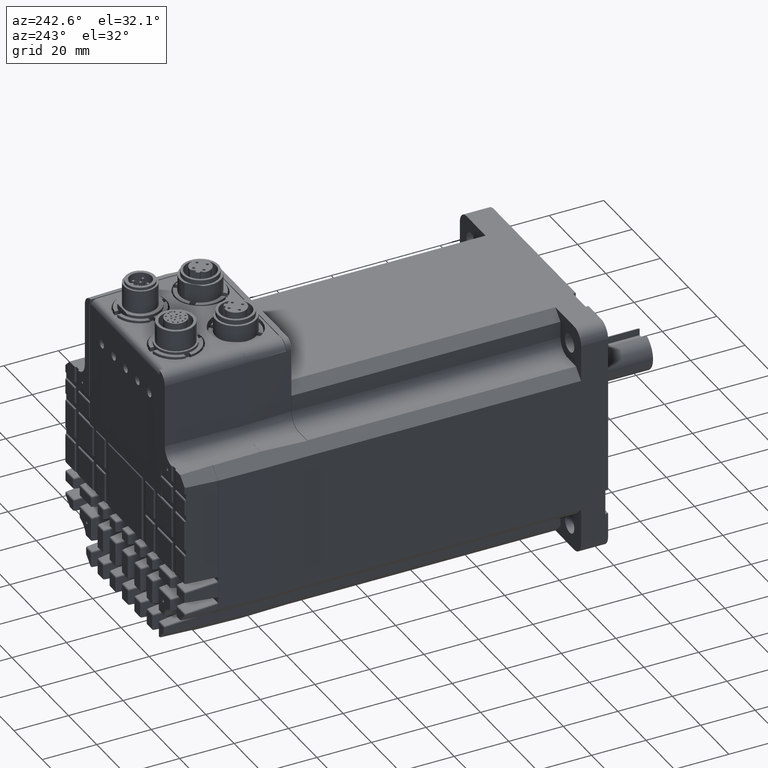
[diagram: clean part render]
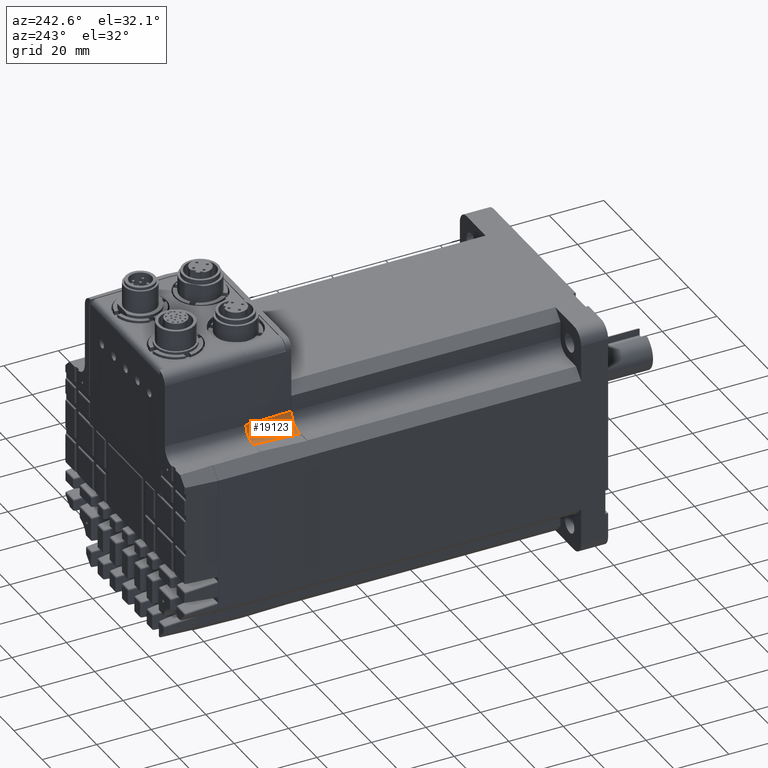
[diagram: same view with one face highlighted and labeled with its STEP entity id]
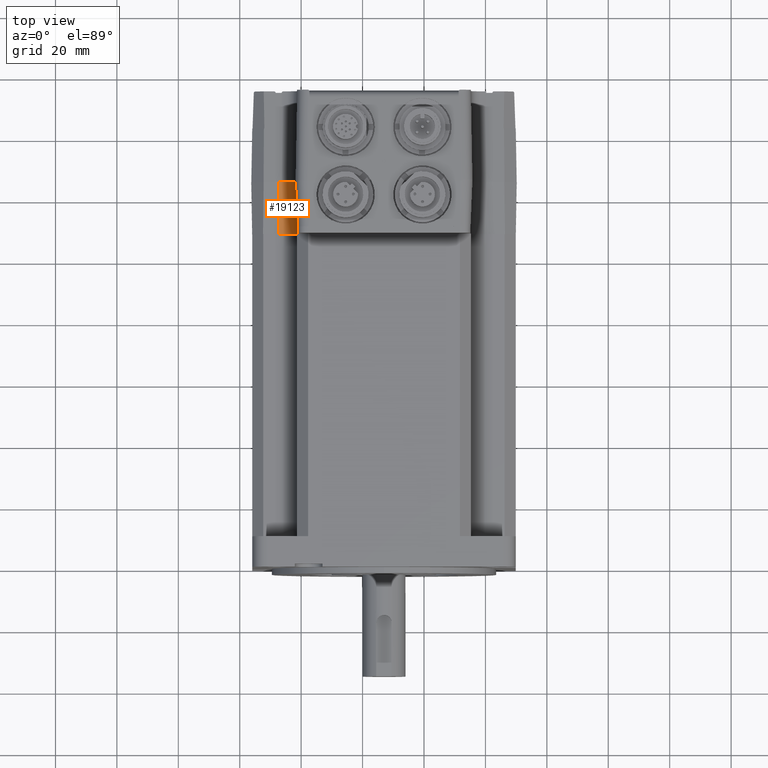
[diagram: same view with one face highlighted and labeled with its STEP entity id]
A machine part, auxiliary view. The second image highlights one B-rep face of the part: STEP entity #19123.
A second angle (top view) of the same face is appended — the face is thin or edge-on in the first view.
In plain terms, the highlighted conical surface has half-angle 2.2 deg.
Its self-contained STEP definition (entity closure, byte-faithful):
#179=CONICAL_SURFACE('',#20975,5.2,0.0383972435438753);
#536=B_SPLINE_CURVE_WITH_KNOTS('',3,(#31310,#31311,#31312,#31313),
 .UNSPECIFIED.,.F.,.F.,(4,4),(0.,0.0170126820656206),.UNSPECIFIED.);
#1047=CIRCLE('',#20840,4.54692587529219);
#1062=CIRCLE('',#20868,5.2);
#5798=ORIENTED_EDGE('',*,*,#8456,.T.);
#5799=ORIENTED_EDGE('',*,*,#8314,.T.);
#5800=ORIENTED_EDGE('',*,*,#8457,.F.);
#5801=ORIENTED_EDGE('',*,*,#8252,.F.);
#8252=EDGE_CURVE('',#9893,#9894,#1047,.T.);
#8314=EDGE_CURVE('',#9946,#9945,#1062,.F.);
#8456=EDGE_CURVE('',#9893,#9946,#536,.T.);
#8457=EDGE_CURVE('',#9894,#9945,#11441,.F.);
#9893=VERTEX_POINT('',#30833);
#9894=VERTEX_POINT('',#30835);
#9945=VERTEX_POINT('',#30955);
#9946=VERTEX_POINT('',#30957);
#11441=LINE('',#31315,#12831);
#12831=VECTOR('',#25856,1000.);
#13975=EDGE_LOOP('',(#5798,#5799,#5800,#5801));
#15185=FACE_BOUND('',#13975,.T.);
#19123=ADVANCED_FACE('',(#15185),#179,.F.);
#20840=AXIS2_PLACEMENT_3D('',#30834,#25462,#25463);
#20868=AXIS2_PLACEMENT_3D('',#30956,#25560,#25561);
#20975=AXIS2_PLACEMENT_3D('',#31316,#25857,#25858);
#25462=DIRECTION('',(0.,-1.,0.));
#25463=DIRECTION('',(0.,0.,-1.));
#25560=DIRECTION('',(0.,1.,0.));
#25561=DIRECTION('',(0.,0.,1.));
#25856=DIRECTION('',(-0.0383878090875199,0.999262916410621,-5.39208369355762E-18));
#25857=DIRECTION('',(0.,-1.,0.));
#25858=DIRECTION('',(0.,0.,-1.));
#30833=CARTESIAN_POINT('',(12.6745119701061,67.25,92.9168241247078));
#30834=CARTESIAN_POINT('',(13.665625,67.25,97.3544169268226));
#30835=CARTESIAN_POINT('',(18.2125508752922,67.25,97.3544169268226));
#30955=CARTESIAN_POINT('',(18.865625,50.25,97.3544169268226));
#30956=CARTESIAN_POINT('',(13.665625,50.25,97.3544169268226));
#30957=CARTESIAN_POINT('',(12.604912861786,50.25,92.26375));
#31310=CARTESIAN_POINT('',(12.6745119701061,67.25,92.9168241247078));
#31311=CARTESIAN_POINT('',(12.6504977031233,61.5833366933026,92.6991328788822));
#31312=CARTESIAN_POINT('',(12.6273514472709,55.9166697536675,92.4814414934932));
#31313=CARTESIAN_POINT('',(12.604912861786,50.25,92.26375));
#31315=CARTESIAN_POINT('',(13.665625,185.609826175246,97.3544169268226));
#31316=CARTESIAN_POINT('',(13.665625,50.25,97.3544169268226));